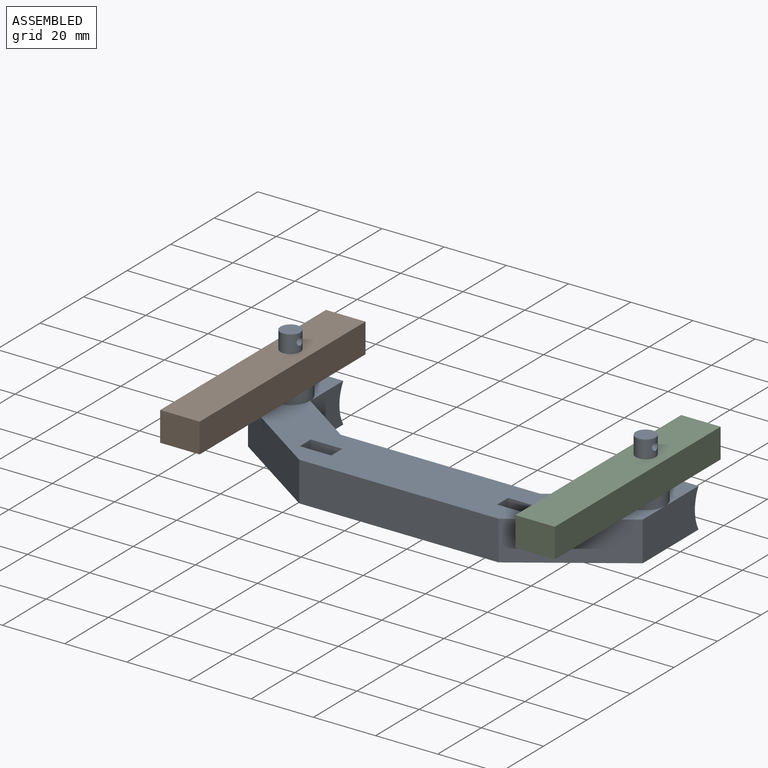
[diagram: assembled view]
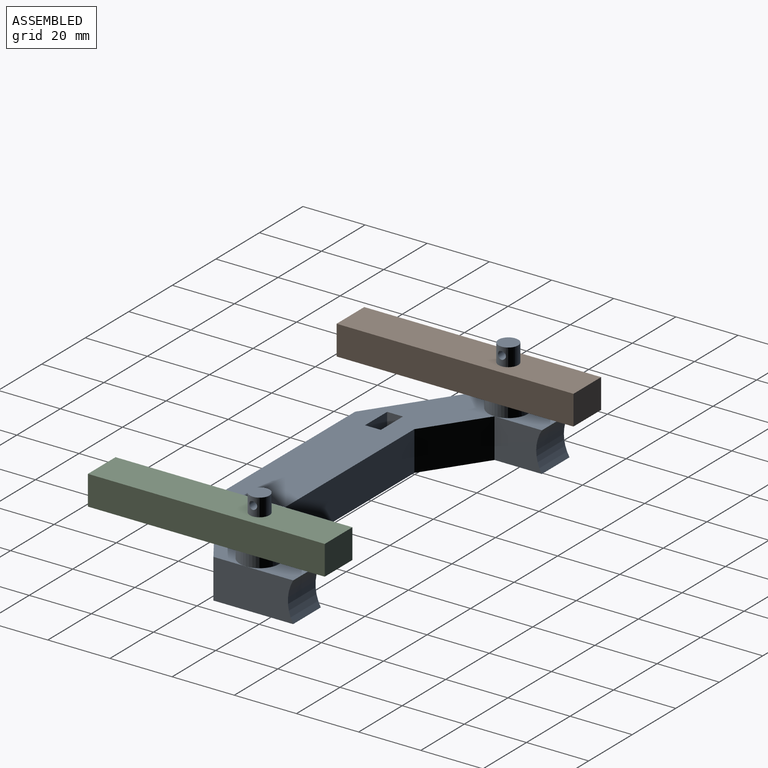
[diagram: assembled view, second angle]
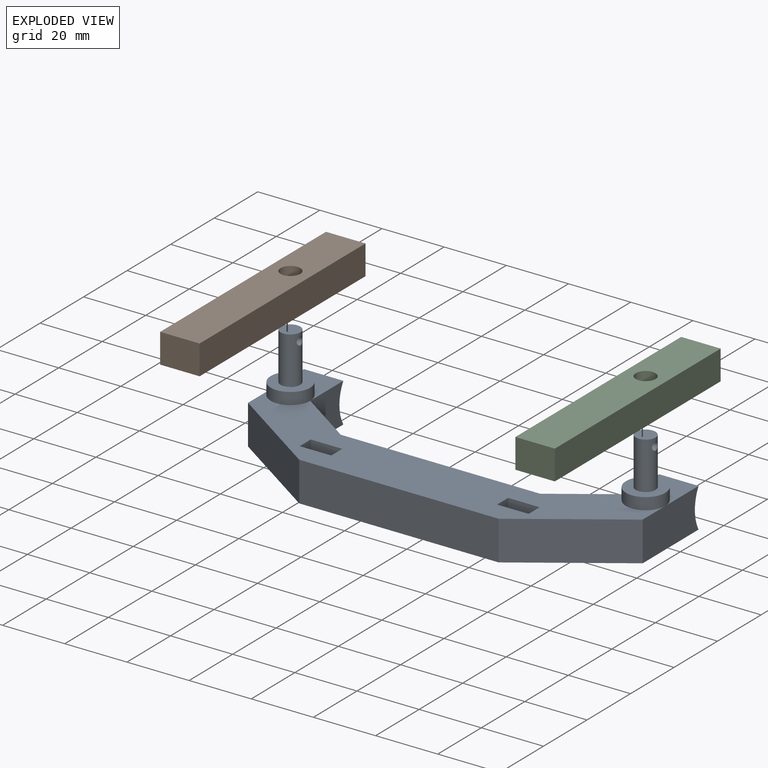
[diagram: exploded view]
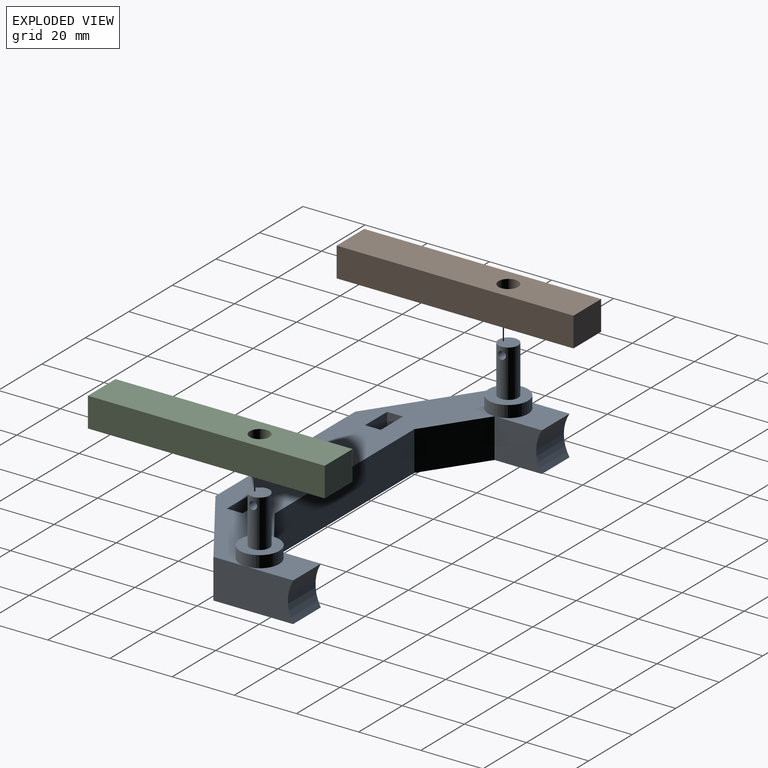
[diagram: exploded view, second angle]
ASSEMBLY  parts=3 mates=2
PART A: 34 faces, bbox 127x47x31.8 mm
  f0: plane 126.98x31.75mm, normal (0,0,1), area 2079.6mm2, adj f3,f4,f5,f6,f8,f9,f10,f12
  f1: plane 126.98x46.99mm, normal (0,0,-1), area 2593.3mm2, adj f3,f4,f5,f6,f7,f8,f9,f10
  f2: plane 15.24x12.7mm, normal (0,0,1), area 130.2mm2, adj f11,f12,f14,f16
  f3: plane 31.4x21.32mm, normal (-0.56,-0.83,0), area 482.1mm2, adj f0,f1,f4,f12
  f4: plane 64.17x12.7mm, normal (0,-1,0), area 815mm2, adj f0,f1,f3,f5
  f5: plane 31.4x21.32mm, normal (0.56,-0.83,0), area 482.1mm2, adj f0,f1,f4,f6
  f6: plane 25.67x12.7mm, normal (1,0,0), area 311.4mm2, adj f0,f1,f5,f13,f15
  f7: plane 15.24x12.7mm, normal (-1,0,0), area 178.9mm2, adj f1,f8,f13,f15
  f8: plane 18.7x12.7mm, normal (-0.56,0.83,0), area 287.1mm2, adj f0,f1,f7,f9
  f9: plane 64.17x12.7mm, normal (0,1,0), area 815mm2, adj f0,f1,f8,f10
  f10: plane 18.7x12.7mm, normal (0.56,0.83,0), area 287.1mm2, adj f0,f1,f9,f11
  f11: plane 15.24x12.7mm, normal (1,0,0), area 177.9mm2, adj f1,f2,f10,f14
  f12: plane 25.67x12.7mm, normal (-1,0,0), area 310.3mm2, adj f0,f1,f2,f3,f14
  f13: plane 15.24x12.7mm, normal (0,0,1), area 130.2mm2, adj f6,f7,f15,f18
  f14: cylinder r=11.98mm len=12.7mm, axis (1,0,0), area 170mm2, adj f1,f2,f11,f12
  f15: cylinder r=12.7mm len=12.7mm, axis (-1,0,0), area 168.9mm2, adj f1,f6,f7,f13
  f16: cylinder r=6.35mm len=12.7mm, axis (0,0,-1), area 152mm2, adj f0,f2,f17
  f17: plane 12.7x12.7mm, normal (0,0,1), area 95mm2, adj f16,f28
  f18: cylinder r=6.35mm len=12.7mm, axis (0,0,-1), area 152mm2, adj f0,f13,f19
  f19: plane 12.7x12.7mm, normal (0,0,1), area 95mm2, adj f18,f30
  f20: plane 12.7x10.16mm, normal (0,-1,0), area 129mm2, adj f0,f1,f21,f23
  f21: plane 12.7x5.08mm, normal (1,0,0), area 64.5mm2, adj f0,f1,f20,f22
  f22: plane 12.7x10.16mm, normal (0,1,0), area 129mm2, adj f0,f1,f21,f23
  f23: plane 12.7x5.08mm, normal (-1,0,0), area 64.5mm2, adj f0,f1,f20,f22
  f24: plane 12.7x5.08mm, normal (-1,0,0), area 64.5mm2, adj f0,f1,f25,f27
  f25: plane 12.7x10.16mm, normal (0,-1,0), area 129mm2, adj f0,f1,f24,f26
  f26: plane 12.7x5.08mm, normal (1,0,0), area 64.5mm2, adj f0,f1,f25,f27
  f27: plane 12.7x10.16mm, normal (0,1,0), area 129mm2, adj f0,f1,f24,f26
  f28: cylinder r=3.17mm len=15.24mm, axis (0,0,-1), area 293.7mm2, adj f17,f29,f33
  f29: plane 6.35x6.35mm, normal (0,0,1), area 31.7mm2, adj f28
  f30: cylinder r=3.17mm len=15.24mm, axis (0,0,-1), area 293.7mm2, adj f19,f31,f32
  f31: plane 6.35x6.35mm, normal (0,0,1), area 31.7mm2, adj f30
  f32: cylinder r=1.27mm len=6.35mm, axis (-1,0,0), area 48.6mm2, adj f30
  f33: cylinder r=1.27mm len=6.35mm, axis (-1,0,0), area 48.6mm2, adj f28
PART B: 7 faces, bbox 12.7x76.2x9.5 mm
  f0: plane 12.7x9.53mm, normal (0,-1,0), area 121mm2, adj f1,f3,f4,f5
  f1: plane 76.2x9.53mm, normal (1,0,0), area 725.8mm2, adj f0,f2,f4,f5
  f2: plane 12.7x9.53mm, normal (0,1,0), area 121mm2, adj f1,f3,f4,f5
  f3: plane 76.2x9.53mm, normal (-1,0,0), area 725.8mm2, adj f0,f2,f4,f5
  f4: plane 76.2x12.7mm, normal (0,0,1), area 936.1mm2, adj f0,f1,f2,f3,f6
  f5: plane 76.2x12.7mm, normal (0,0,-1), area 936.1mm2, adj f0,f1,f2,f3,f6
  f6: cylinder r=3.17mm len=9.53mm, axis (0,0,1), area 190mm2, adj f4,f5
PART C: same geometry as B
PLACE A t=(-4.68,-7.36,-18.66)mm
PLACE B t=(-61.82,2.16,-2.15)mm
PLACE C t=(52.46,2.16,-2.15)mm
MATE revolute A.f16 <-> B.f6  axis (0,0,-1) through (-61.82,14.86,-2.15)mm
MATE revolute C.f6 <-> A.f18  axis (0,0,-1) through (52.46,14.86,-2.15)mm
